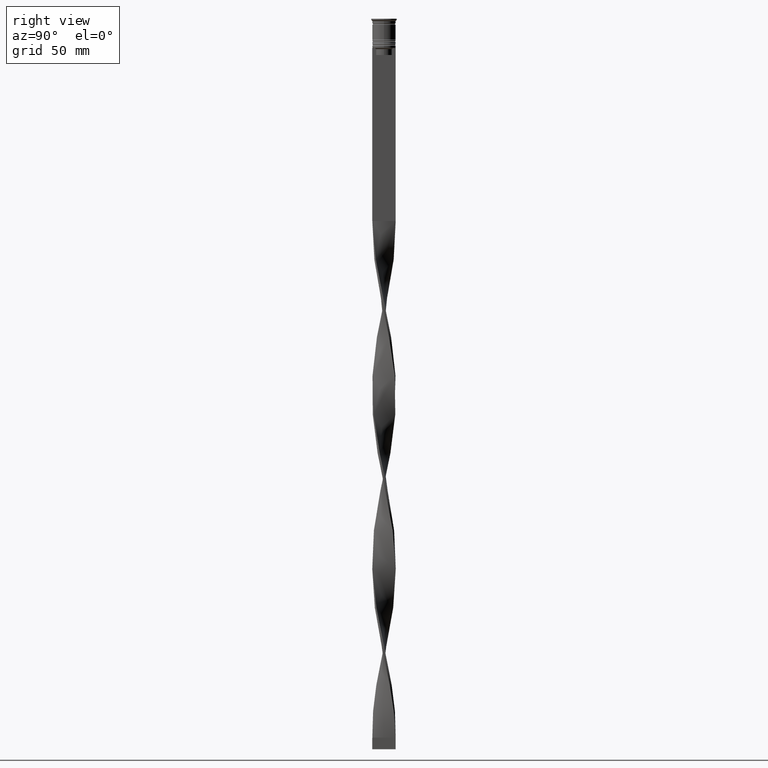
[diagram: clean part render]
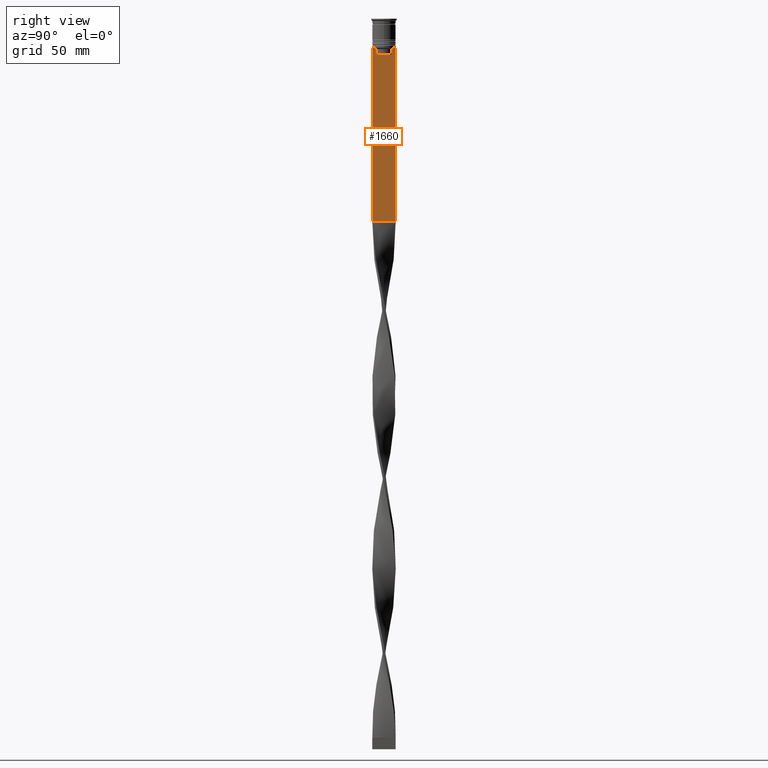
[diagram: same view with one face highlighted and labeled with its STEP entity id]
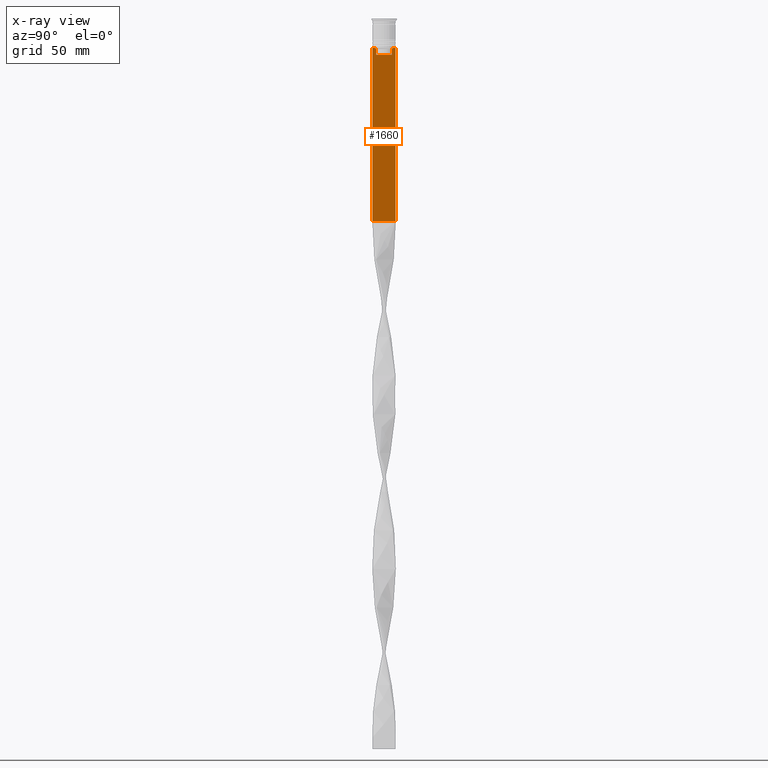
[diagram: x-ray of the same camera — body ghosted, the highlighted face saturated]
A machine part, right view. The second image highlights one B-rep face of the part: STEP entity #1660.
The next image is the same camera in x-ray: the body ghosted, the highlighted face saturated — about 0% of this face is hidden behind the body in this view.
In plain terms, the highlighted planar face has unit normal (-1, 0, 0).
Its self-contained STEP definition (entity closure, byte-faithful):
#2 = CARTESIAN_POINT ( 'NONE',  ( 0.5000000000000000000, 3.399999999999998135, -15.50000000000000000 ) ) ;
#138 = VERTEX_POINT ( 'NONE', #3140 ) ;
#163 = CARTESIAN_POINT ( 'NONE',  ( 0.5000000000000000000, 5.000000000000000888, -86.50000000000000000 ) ) ;
#166 = VECTOR ( 'NONE', #2575, 1000.000000000000000 ) ;
#170 = VECTOR ( 'NONE', #2783, 1000.000000000000000 ) ;
#179 = EDGE_CURVE ( 'NONE', #3458, #2160, #3548, .T. ) ;
#183 = EDGE_CURVE ( 'NONE', #1072, #138, #676, .T. ) ;
#192 = DIRECTION ( 'NONE',  ( 0.000000000000000000, 0.000000000000000000, -1.000000000000000000 ) ) ;
#214 = CARTESIAN_POINT ( 'NONE',  ( 0.5000000000000000000, 5.000000000000000888, -12.50000000000000000 ) ) ;
#255 = DIRECTION ( 'NONE',  ( 0.000000000000000000, -1.000000000000000000, 0.000000000000000000 ) ) ;
#328 = CARTESIAN_POINT ( 'NONE',  ( 0.5000000000000000000, 5.000000000000000888, -2.450124378879110054 ) ) ;
#364 = VECTOR ( 'NONE', #3025, 1000.000000000000000 ) ;
#399 = CARTESIAN_POINT ( 'NONE',  ( 0.5000000000000000000, -4.999999999999999112, -2.450124378879110054 ) ) ;
#413 = B_SPLINE_CURVE_WITH_KNOTS ( 'NONE', 3,
 ( #1582, #3421, #1247, #1521 ),
 .UNSPECIFIED., .F., .F.,
 ( 4, 4 ),
 ( 0.01632394437298965648, 0.01703543518243618576 ),
 .UNSPECIFIED. ) ;
#520 = VECTOR ( 'NONE', #255, 1000.000000000000000 ) ;
#529 = VERTEX_POINT ( 'NONE', #1560 ) ;
#554 = CARTESIAN_POINT ( 'NONE',  ( 0.5000000000000000000, 4.874423042781575788, -12.50000000000000000 ) ) ;
#643 = VECTOR ( 'NONE', #1359, 1000.000000000000000 ) ;
#676 = LINE ( 'NONE', #2, #166 ) ;
#727 = VERTEX_POINT ( 'NONE', #2860 ) ;
#735 = EDGE_CURVE ( 'NONE', #1369, #2690, #4128, .T. ) ;
#742 = LINE ( 'NONE', #2972, #1782 ) ;
#882 = DIRECTION ( 'NONE',  ( 0.000000000000000000, 1.000000000000000000, 0.000000000000000000 ) ) ;
#911 = EDGE_CURVE ( 'NONE', #2160, #2584, #1309, .T. ) ;
#1010 = CARTESIAN_POINT ( 'NONE',  ( 0.5000000000000000000, -4.999999999999999112, -12.50000000000000000 ) ) ;
#1068 = DIRECTION ( 'NONE',  ( 0.000000000000000000, 0.000000000000000000, 1.000000000000000000 ) ) ;
#1072 = VERTEX_POINT ( 'NONE', #2705 ) ;
#1107 = LINE ( 'NONE', #3947, #4113 ) ;
#1202 = CARTESIAN_POINT ( 'NONE',  ( 0.5000000000000000000, 3.699657965831574913, -12.66677026074361301 ) ) ;
#1205 = CARTESIAN_POINT ( 'NONE',  ( 0.5000000000000000000, -3.363034344160045208, 0.000000000000000000 ) ) ;
#1247 = CARTESIAN_POINT ( 'NONE',  ( 0.5000000000000000000, -3.699658232838647365, -12.66676999593996555 ) ) ;
#1309 = LINE ( 'NONE', #2590, #364 ) ;
#1359 = DIRECTION ( 'NONE',  ( 0.000000000000000000, -1.000000000000000000, 0.000000000000000000 ) ) ;
#1364 = B_SPLINE_CURVE_WITH_KNOTS ( 'NONE', 3,
 ( #1597, #1202, #1889, #1852 ),
 .UNSPECIFIED., .F., .F.,
 ( 4, 4 ),
 ( 0.006644825462451552783, 0.007355321358912435097 ),
 .UNSPECIFIED. ) ;
#1369 = VERTEX_POINT ( 'NONE', #214 ) ;
#1499 = VECTOR ( 'NONE', #2539, 1000.000000000000000 ) ;
#1513 = ORIENTED_EDGE ( 'NONE', *, *, #3664, .T. ) ;
#1521 = CARTESIAN_POINT ( 'NONE',  ( 0.5000000000000000000, -3.867815921162742754, -12.50000000000000000 ) ) ;
#1560 = CARTESIAN_POINT ( 'NONE',  ( 0.5000000000000000000, -3.867815921162742754, -12.50000000000000000 ) ) ;
#1582 = CARTESIAN_POINT ( 'NONE',  ( 0.5000000000000000000, -3.363034344160045208, -13.00000000000000178 ) ) ;
#1597 = CARTESIAN_POINT ( 'NONE',  ( 0.5000000000000000000, 3.867815921162742754, -12.50000000000000000 ) ) ;
#1660 = ADVANCED_FACE ( 'NONE', ( #2637 ), #1695, .F. ) ;
#1663 = ORIENTED_EDGE ( 'NONE', *, *, #3972, .T. ) ;
#1695 = PLANE ( 'NONE',  #3907 ) ;
#1721 = DIRECTION ( 'NONE',  ( -1.000000000000000000, 0.000000000000000000, 0.000000000000000000 ) ) ;
#1739 = CARTESIAN_POINT ( 'NONE',  ( 0.5000000000000000000, 3.363034344160045208, -13.00000000000000178 ) ) ;
#1782 = VECTOR ( 'NONE', #3931, 1000.000000000000000 ) ;
#1785 = ORIENTED_EDGE ( 'NONE', *, *, #3367, .T. ) ;
#1798 = CARTESIAN_POINT ( 'NONE',  ( 0.5000000000000000000, -4.874423042781575788, -12.50000000000000000 ) ) ;
#1815 = LINE ( 'NONE', #1205, #2453 ) ;
#1852 = CARTESIAN_POINT ( 'NONE',  ( 0.5000000000000000000, 3.363034344160045208, -13.00000000000000178 ) ) ;
#1887 = VERTEX_POINT ( 'NONE', #554 ) ;
#1889 = CARTESIAN_POINT ( 'NONE',  ( 0.5000000000000000000, 3.531412678228260216, -12.83345231756357840 ) ) ;
#1903 = EDGE_CURVE ( 'NONE', #727, #3369, #1364, .T. ) ;
#1921 = VECTOR ( 'NONE', #882, 1000.000000000000000 ) ;
#2025 = CARTESIAN_POINT ( 'NONE',  ( 0.5000000000000000000, -3.363034344160045208, -13.00000000000000178 ) ) ;
#2137 = CARTESIAN_POINT ( 'NONE',  ( 0.5000000000000000000, -4.999999999999999112, -86.50000000000000000 ) ) ;
#2160 = VERTEX_POINT ( 'NONE', #3270 ) ;
#2187 = ORIENTED_EDGE ( 'NONE', *, *, #735, .F. ) ;
#2453 = VECTOR ( 'NONE', #3477, 1000.000000000000000 ) ;
#2496 = VERTEX_POINT ( 'NONE', #2025 ) ;
#2539 = DIRECTION ( 'NONE',  ( 0.000000000000000000, -1.000000000000000000, 0.000000000000000000 ) ) ;
#2575 = DIRECTION ( 'NONE',  ( 0.000000000000000000, -1.000000000000000000, 0.000000000000000000 ) ) ;
#2584 = VERTEX_POINT ( 'NONE', #2740 ) ;
#2590 = CARTESIAN_POINT ( 'NONE',  ( 0.5000000000000000000, -4.999999999999999112, -2.450124378879110054 ) ) ;
#2604 = ORIENTED_EDGE ( 'NONE', *, *, #911, .T. ) ;
#2637 = FACE_OUTER_BOUND ( 'NONE', #3207, .T. ) ;
#2690 = VERTEX_POINT ( 'NONE', #163 ) ;
#2705 = CARTESIAN_POINT ( 'NONE',  ( 0.5000000000000000000, 3.363034344160045652, -15.50000000000000000 ) ) ;
#2740 = CARTESIAN_POINT ( 'NONE',  ( 0.5000000000000000000, -4.999999999999999112, -86.50000000000000000 ) ) ;
#2783 = DIRECTION ( 'NONE',  ( 0.000000000000000000, 0.000000000000000000, -1.000000000000000000 ) ) ;
#2808 = EDGE_CURVE ( 'NONE', #1369, #1887, #742, .T. ) ;
#2812 = ORIENTED_EDGE ( 'NONE', *, *, #3560, .T. ) ;
#2826 = EDGE_CURVE ( 'NONE', #529, #3458, #3240, .T. ) ;
#2833 = ORIENTED_EDGE ( 'NONE', *, *, #1903, .T. ) ;
#2860 = CARTESIAN_POINT ( 'NONE',  ( 0.5000000000000000000, 3.867815921162742754, -12.50000000000000000 ) ) ;
#2972 = CARTESIAN_POINT ( 'NONE',  ( 0.5000000000000000000, -4.999999999999999112, -12.50000000000000000 ) ) ;
#2983 = ORIENTED_EDGE ( 'NONE', *, *, #4001, .T. ) ;
#3025 = DIRECTION ( 'NONE',  ( 0.000000000000000000, 0.000000000000000000, -1.000000000000000000 ) ) ;
#3096 = LINE ( 'NONE', #3736, #520 ) ;
#3140 = CARTESIAN_POINT ( 'NONE',  ( 0.5000000000000000000, -3.363034344160045652, -15.50000000000000000 ) ) ;
#3207 = EDGE_LOOP ( 'NONE', ( #2983, #2833, #1785, #4017, #1513, #2812, #3665, #3271, #2604, #1663, #2187, #3335 ) ) ;
#3240 = LINE ( 'NONE', #3610, #643 ) ;
#3270 = CARTESIAN_POINT ( 'NONE',  ( 0.5000000000000000000, -4.999999999999999112, -12.50000000000000000 ) ) ;
#3271 = ORIENTED_EDGE ( 'NONE', *, *, #179, .T. ) ;
#3335 = ORIENTED_EDGE ( 'NONE', *, *, #2808, .T. ) ;
#3367 = EDGE_CURVE ( 'NONE', #3369, #1072, #1107, .T. ) ;
#3369 = VERTEX_POINT ( 'NONE', #1739 ) ;
#3421 = CARTESIAN_POINT ( 'NONE',  ( 0.5000000000000000000, -3.531412985305424801, -12.83345201382502765 ) ) ;
#3458 = VERTEX_POINT ( 'NONE', #1798 ) ;
#3477 = DIRECTION ( 'NONE',  ( -0.000000000000000000, -0.000000000000000000, 1.000000000000000000 ) ) ;
#3548 = LINE ( 'NONE', #1010, #1499 ) ;
#3560 = EDGE_CURVE ( 'NONE', #2496, #529, #413, .T. ) ;
#3610 = CARTESIAN_POINT ( 'NONE',  ( 0.5000000000000000000, -4.999999999999999112, -12.50000000000000000 ) ) ;
#3664 = EDGE_CURVE ( 'NONE', #138, #2496, #1815, .T. ) ;
#3665 = ORIENTED_EDGE ( 'NONE', *, *, #2826, .T. ) ;
#3736 = CARTESIAN_POINT ( 'NONE',  ( 0.5000000000000000000, -4.999999999999999112, -12.50000000000000000 ) ) ;
#3907 = AXIS2_PLACEMENT_3D ( 'NONE', #399, #1721, #1068 ) ;
#3931 = DIRECTION ( 'NONE',  ( 0.000000000000000000, -1.000000000000000000, 0.000000000000000000 ) ) ;
#3947 = CARTESIAN_POINT ( 'NONE',  ( 0.5000000000000000000, 3.363034344160045208, 0.000000000000000000 ) ) ;
#3972 = EDGE_CURVE ( 'NONE', #2584, #2690, #4089, .T. ) ;
#4001 = EDGE_CURVE ( 'NONE', #1887, #727, #3096, .T. ) ;
#4017 = ORIENTED_EDGE ( 'NONE', *, *, #183, .T. ) ;
#4089 = LINE ( 'NONE', #2137, #1921 ) ;
#4113 = VECTOR ( 'NONE', #192, 1000.000000000000000 ) ;
#4128 = LINE ( 'NONE', #328, #170 ) ;